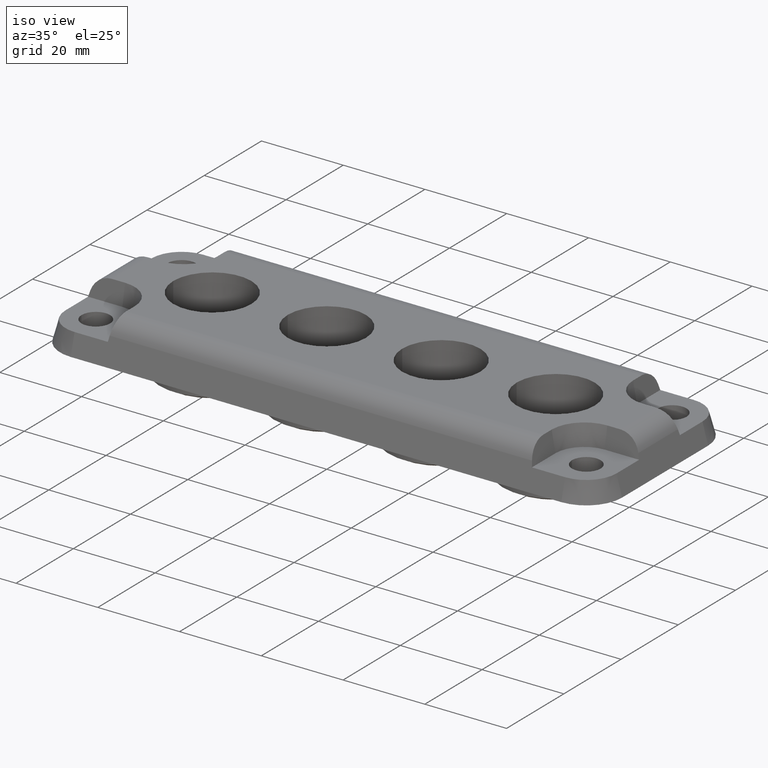
[diagram: clean part render]
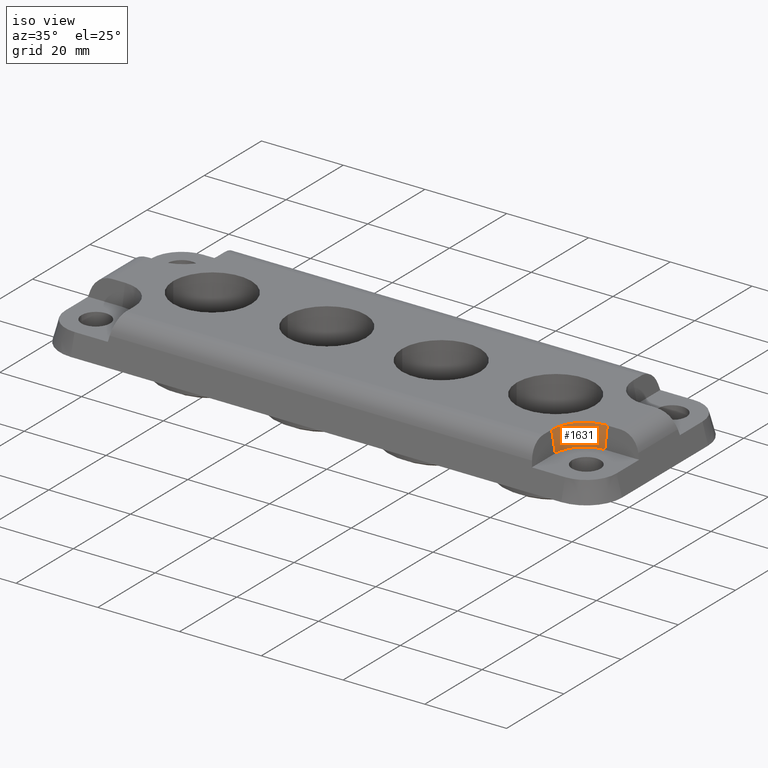
[diagram: same view with one face highlighted and labeled with its STEP entity id]
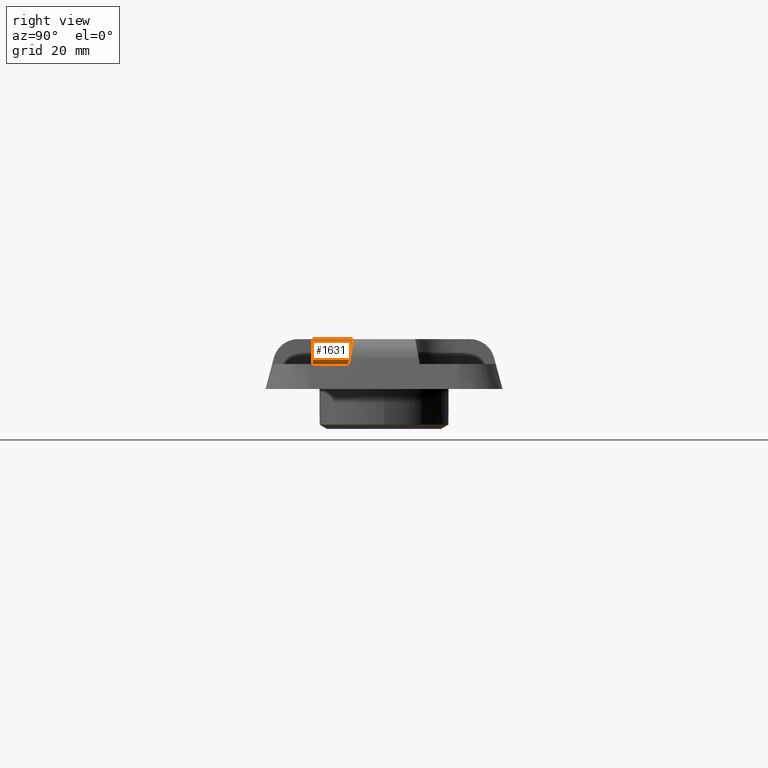
[diagram: same view with one face highlighted and labeled with its STEP entity id]
A machine part, iso view. The second image highlights one B-rep face of the part: STEP entity #1631.
A second angle (right view) of the same face is appended — the face is thin or edge-on in the first view.
In plain terms, the highlighted conical surface has half-angle 10 deg.
Its self-contained STEP definition (entity closure, byte-faithful):
#143 = ORIENTED_EDGE ( 'NONE', *, *, #901, .F. ) ;
#234 = LINE ( 'NONE', #2997, #1855 ) ;
#336 = ORIENTED_EDGE ( 'NONE', *, *, #2647, .T. ) ;
#432 = DIRECTION ( 'NONE',  ( -1.000000000000000000, 0.0000000000000000000, 0.0000000000000000000 ) ) ;
#600 = CARTESIAN_POINT ( 'NONE',  ( 51.00000000000000700, -14.25000000000003200, 10.00000000000000000 ) ) ;
#649 = CIRCLE ( 'NONE', #1977, 7.118365096457676300 ) ;
#659 = VERTEX_POINT ( 'NONE', #600 ) ;
#901 = EDGE_CURVE ( 'NONE', #3158, #1422, #649, .T. ) ;
#1237 = AXIS2_PLACEMENT_3D ( 'NONE', #3539, #2406, #3110 ) ;
#1359 = DIRECTION ( 'NONE',  ( -0.1736481776669307200, -1.204926281437664800E-015, 0.9848077530122080200 ) ) ;
#1422 = VERTEX_POINT ( 'NONE', #1683 ) ;
#1567 = FACE_OUTER_BOUND ( 'NONE', #2813, .T. ) ;
#1631 = ADVANCED_FACE ( 'NONE', ( #1567 ), #3461, .F. ) ;
#1683 = CARTESIAN_POINT ( 'NONE',  ( 51.88163490354232000, -14.25000000000003000, 5.000000000000000000 ) ) ;
#1855 = VECTOR ( 'NONE', #3928, 1000.000000000000000 ) ;
#1929 = AXIS2_PLACEMENT_3D ( 'NONE', #1974, #3531, #3804 ) ;
#1974 = CARTESIAN_POINT ( 'NONE',  ( 59.00000000000000000, -14.24999999999998200, 10.00000000000000000 ) ) ;
#1977 = AXIS2_PLACEMENT_3D ( 'NONE', #2591, #3281, #432 ) ;
#2285 = ORIENTED_EDGE ( 'NONE', *, *, #2697, .F. ) ;
#2406 = DIRECTION ( 'NONE',  ( -0.0000000000000000000, -0.0000000000000000000, 1.000000000000000000 ) ) ;
#2563 = CARTESIAN_POINT ( 'NONE',  ( 51.00000000000000000, -14.25000000000003700, 10.00000000000000000 ) ) ;
#2591 = CARTESIAN_POINT ( 'NONE',  ( 59.00000000000000000, -14.24999999999998200, 5.000000000000000000 ) ) ;
#2638 = VECTOR ( 'NONE', #1359, 1000.000000000000000 ) ;
#2647 = EDGE_CURVE ( 'NONE', #3330, #659, #3043, .T. ) ;
#2697 = EDGE_CURVE ( 'NONE', #1422, #659, #3623, .T. ) ;
#2704 = CARTESIAN_POINT ( 'NONE',  ( 59.00000000000005000, -7.131634903542307700, 5.000000000000000000 ) ) ;
#2813 = EDGE_LOOP ( 'NONE', ( #2984, #336, #2285, #143 ) ) ;
#2984 = ORIENTED_EDGE ( 'NONE', *, *, #3208, .T. ) ;
#2997 = CARTESIAN_POINT ( 'NONE',  ( 59.00000000000005000, -6.249999999999980500, 10.00000000000000000 ) ) ;
#3043 = CIRCLE ( 'NONE', #1929, 8.000000000000007100 ) ;
#3110 = DIRECTION ( 'NONE',  ( 1.000000000000000000, 0.0000000000000000000, 0.0000000000000000000 ) ) ;
#3158 = VERTEX_POINT ( 'NONE', #2704 ) ;
#3208 = EDGE_CURVE ( 'NONE', #3158, #3330, #234, .T. ) ;
#3281 = DIRECTION ( 'NONE',  ( 0.0000000000000000000, 0.0000000000000000000, 1.000000000000000000 ) ) ;
#3330 = VERTEX_POINT ( 'NONE', #3970 ) ;
#3461 = CONICAL_SURFACE ( 'NONE', #1237, 8.000000000000007100, 0.1745329251994333400 ) ;
#3531 = DIRECTION ( 'NONE',  ( 0.0000000000000000000, 0.0000000000000000000, 1.000000000000000000 ) ) ;
#3539 = CARTESIAN_POINT ( 'NONE',  ( 59.00000000000000000, -14.24999999999998200, 10.00000000000000000 ) ) ;
#3623 = LINE ( 'NONE', #2563, #2638 ) ;
#3804 = DIRECTION ( 'NONE',  ( 1.000000000000000000, 0.0000000000000000000, 0.0000000000000000000 ) ) ;
#3928 = DIRECTION ( 'NONE',  ( -9.268663703366710400E-017, 0.1736481776669307200, 0.9848077530122080200 ) ) ;
#3970 = CARTESIAN_POINT ( 'NONE',  ( 59.00000000000005000, -6.249999999999981300, 10.00000000000000000 ) ) ;